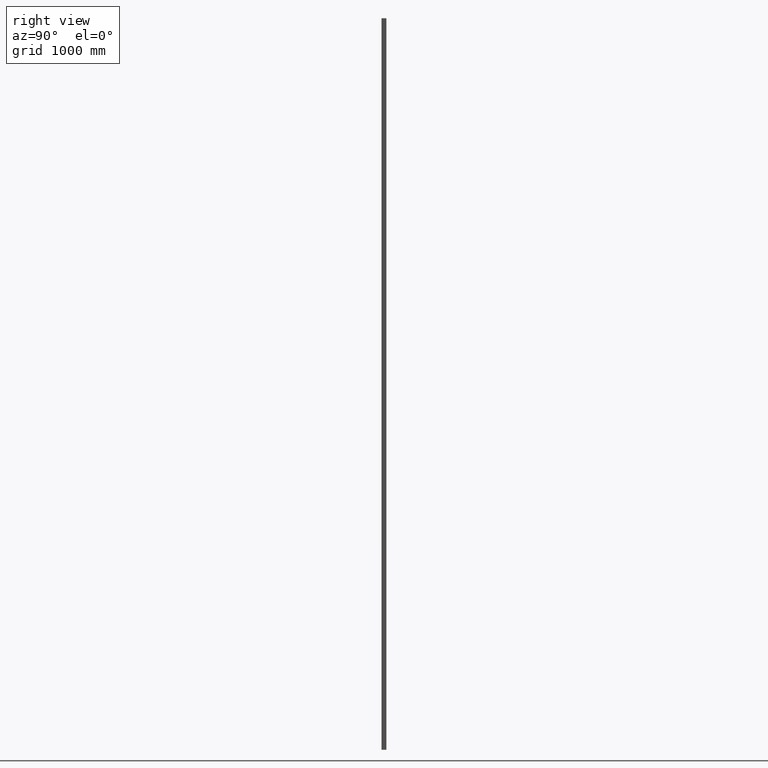
[diagram: clean part render]
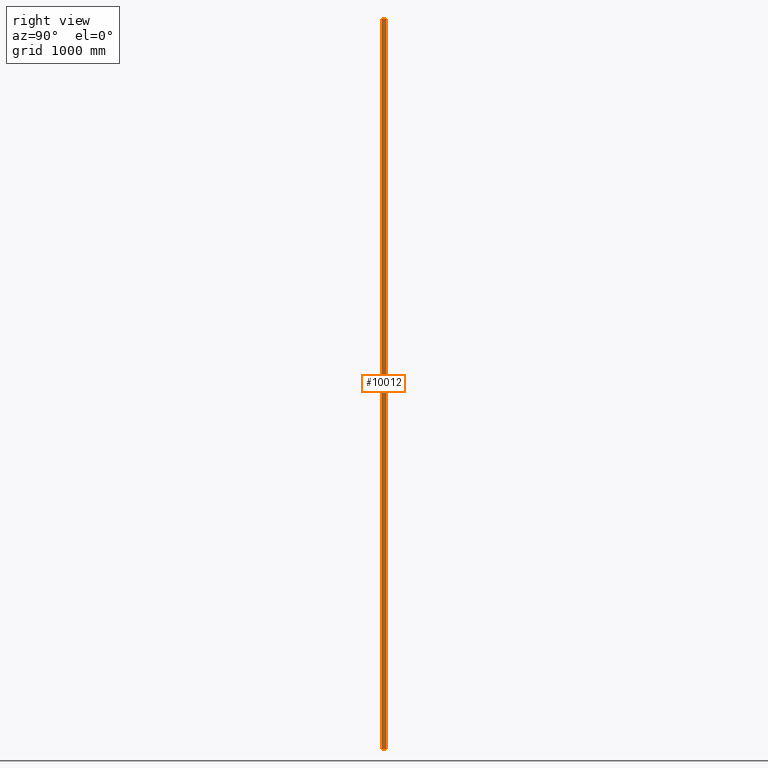
[diagram: same view with one face highlighted and labeled with its STEP entity id]
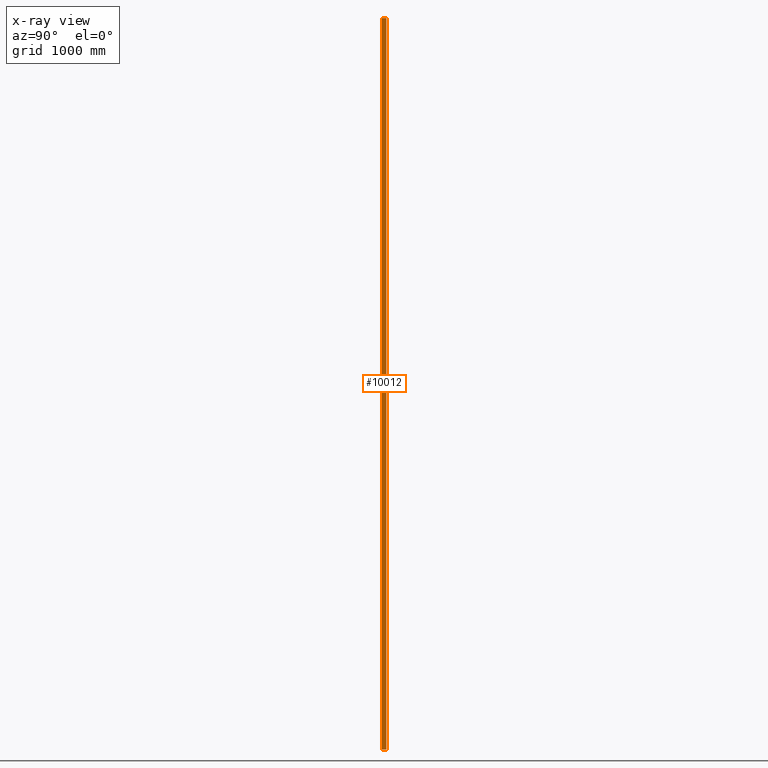
[diagram: x-ray of the same camera — body ghosted, the highlighted face saturated]
A machine part, right view. The second image highlights one B-rep face of the part: STEP entity #10012.
The next image is the same camera in x-ray: the body ghosted, the highlighted face saturated — about 0% of this face is hidden behind the body in this view.
In plain terms, the highlighted planar face has unit normal (-1, -0, 0).
Its self-contained STEP definition (entity closure, byte-faithful):
#167 = CARTESIAN_POINT ( 'NONE',  ( 19.99999999999998934, 18.00000000000001066, 3000.000000000000000 ) ) ;
#600 = CARTESIAN_POINT ( 'NONE',  ( 19.99999999999998934, 18.00000000000001066, 3000.000000000000000 ) ) ;
#1010 = CARTESIAN_POINT ( 'NONE',  ( 19.99999999999998934, 18.00000000000001066, -3000.000000000000000 ) ) ;
#1315 = VERTEX_POINT ( 'NONE', #13652 ) ;
#1324 = EDGE_CURVE ( 'NONE', #9867, #1315, #13878, .T. ) ;
#1403 = DIRECTION ( 'NONE',  ( -0.000000000000000000, -0.000000000000000000, -1.000000000000000000 ) ) ;
#1527 = LINE ( 'NONE', #1010, #14157 ) ;
#1740 = CARTESIAN_POINT ( 'NONE',  ( 19.99999999999998934, 18.00000000000001066, 3000.000000000000000 ) ) ;
#1813 = EDGE_LOOP ( 'NONE', ( #14094, #11927, #2199, #1908 ) ) ;
#1848 = PLANE ( 'NONE',  #10905 ) ;
#1908 = ORIENTED_EDGE ( 'NONE', *, *, #1324, .T. ) ;
#2199 = ORIENTED_EDGE ( 'NONE', *, *, #2219, .F. ) ;
#2219 = EDGE_CURVE ( 'NONE', #9867, #3842, #12927, .T. ) ;
#3039 = FACE_OUTER_BOUND ( 'NONE', #1813, .T. ) ;
#3842 = VERTEX_POINT ( 'NONE', #1740 ) ;
#4108 = VECTOR ( 'NONE', #1403, 1000.000000000000000 ) ;
#5024 = CARTESIAN_POINT ( 'NONE',  ( 19.99999999999999645, -18.00000000000000000, 3000.000000000000000 ) ) ;
#5200 = DIRECTION ( 'NONE',  ( -0.000000000000000000, -0.000000000000000000, -1.000000000000000000 ) ) ;
#5218 = VECTOR ( 'NONE', #8968, 1000.000000000000000 ) ;
#5526 = LINE ( 'NONE', #167, #10316 ) ;
#7637 = EDGE_CURVE ( 'NONE', #3842, #8187, #5526, .T. ) ;
#8187 = VERTEX_POINT ( 'NONE', #8340 ) ;
#8340 = CARTESIAN_POINT ( 'NONE',  ( 19.99999999999998934, 18.00000000000001066, -3000.000000000000000 ) ) ;
#8466 = EDGE_CURVE ( 'NONE', #1315, #8187, #1527, .T. ) ;
#8968 = DIRECTION ( 'NONE',  ( -1.927470528863118802E-16, 1.000000000000000000, -0.000000000000000000 ) ) ;
#9144 = DIRECTION ( 'NONE',  ( 1.927470528863118802E-16, -1.000000000000000000, 0.000000000000000000 ) ) ;
#9546 = DIRECTION ( 'NONE',  ( -1.927470528863118802E-16, 1.000000000000000000, -0.000000000000000000 ) ) ;
#9867 = VERTEX_POINT ( 'NONE', #14916 ) ;
#10012 = ADVANCED_FACE ( 'NONE', ( #3039 ), #1848, .F. ) ;
#10316 = VECTOR ( 'NONE', #5200, 1000.000000000000000 ) ;
#10905 = AXIS2_PLACEMENT_3D ( 'NONE', #600, #12990, #9144 ) ;
#11927 = ORIENTED_EDGE ( 'NONE', *, *, #7637, .F. ) ;
#12927 = LINE ( 'NONE', #13862, #5218 ) ;
#12990 = DIRECTION ( 'NONE',  ( -1.000000000000000000, -1.927470528863118802E-16, 0.000000000000000000 ) ) ;
#13652 = CARTESIAN_POINT ( 'NONE',  ( 19.99999999999999645, -18.00000000000000000, -3000.000000000000000 ) ) ;
#13862 = CARTESIAN_POINT ( 'NONE',  ( 19.99999999999998934, 18.00000000000001066, 3000.000000000000000 ) ) ;
#13878 = LINE ( 'NONE', #5024, #4108 ) ;
#14094 = ORIENTED_EDGE ( 'NONE', *, *, #8466, .T. ) ;
#14157 = VECTOR ( 'NONE', #9546, 1000.000000000000000 ) ;
#14916 = CARTESIAN_POINT ( 'NONE',  ( 19.99999999999999645, -18.00000000000000000, 3000.000000000000000 ) ) ;